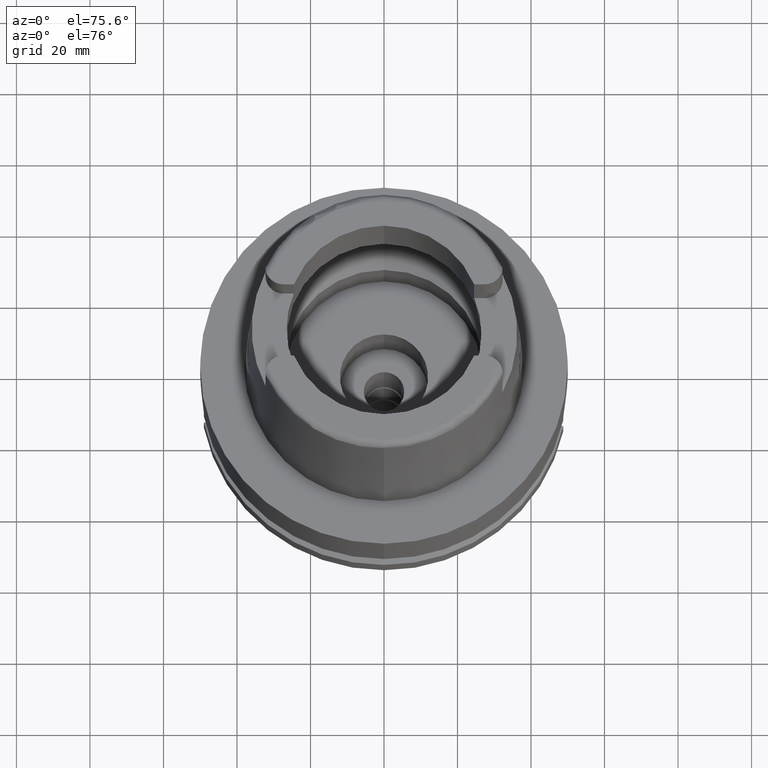
[diagram: clean part render]
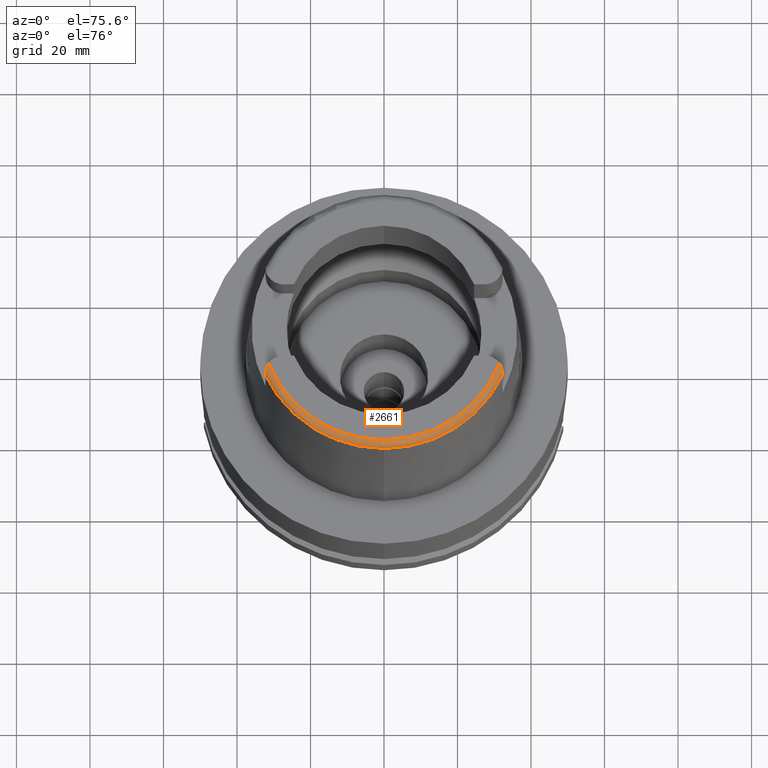
[diagram: same view with one face highlighted and labeled with its STEP entity id]
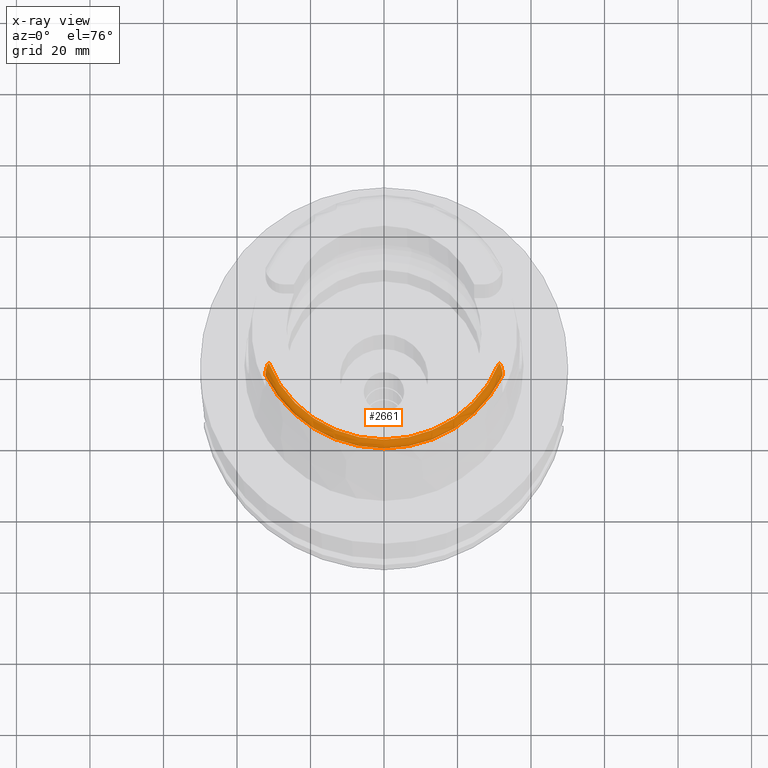
[diagram: x-ray of the same camera — body ghosted, the highlighted face saturated]
A machine part, auxiliary view. The second image highlights one B-rep face of the part: STEP entity #2661.
The next image is the same camera in x-ray: the body ghosted, the highlighted face saturated — about 0% of this face is hidden behind the body in this view.
In plain terms, the highlighted toroidal blend (fillet) surface has major radius 33.5974 mm and minor (blend) radius 2 mm.
Its self-contained STEP definition (entity closure, byte-faithful):
#199=CARTESIAN_POINT('',(0.E0,0.E0,5.E1));
#200=DIRECTION('',(0.E0,0.E0,-1.E0));
#201=DIRECTION('',(9.332215253018E-1,-3.593015233942E-1,0.E0));
#202=AXIS2_PLACEMENT_3D('',#199,#200,#201);
#207=CARTESIAN_POINT('',(-3.135385269249E1,-1.207161079257E1,5.E1));
#208=CARTESIAN_POINT('',(-3.142216743160E1,-1.216817511968E1,5.E1));
#209=CARTESIAN_POINT('',(-3.156009882691E1,-1.237746428653E1,4.998591539067E1));
#210=CARTESIAN_POINT('',(-3.176706257255E1,-1.275776045730E1,4.990700922983E1));
#211=CARTESIAN_POINT('',(-3.194244240746E1,-1.316614288915E1,4.977006830840E1));
#212=CARTESIAN_POINT('',(-3.207488223482E1,-1.357298915160E1,4.958761428567E1));
#213=CARTESIAN_POINT('',(-3.216204635598E1,-1.394593514846E1,4.937947673708E1));
#214=CARTESIAN_POINT('',(-3.221154789196E1,-1.425708009216E1,4.917094014332E1));
#215=CARTESIAN_POINT('',(-3.223745834402E1,-1.451511386344E1,4.896513867992E1));
#216=CARTESIAN_POINT('',(-3.224853522405E1,-1.472743173432E1,4.875948464504E1));
#217=CARTESIAN_POINT('',(-3.225E1,-1.484123081094E1,4.861803816029E1));
#218=CARTESIAN_POINT('',(-3.225E1,-1.489E1,4.854599893822E1));
#237=CARTESIAN_POINT('',(-3.224999491821E1,-1.506448487682E1,4.809973203731E1));
#238=CARTESIAN_POINT('',(-3.224999491821E1,-1.505853670498E1,4.815007791225E1));
#239=CARTESIAN_POINT('',(-3.225000237150E1,-1.503785330363E1,4.824988304617E1));
#240=CARTESIAN_POINT('',(-3.224999932243E1,-1.497920127585E1,4.840028053731E1));
#241=CARTESIAN_POINT('',(-3.225E1,-1.492268851750E1,4.849771321896E1));
#242=CARTESIAN_POINT('',(-3.225E1,-1.489E1,4.854599893822E1));
#247=CARTESIAN_POINT('',(3.225E1,-1.489E1,4.854599893822E1));
#248=CARTESIAN_POINT('',(3.225E1,-1.492405697843E1,4.849569180210E1));
#249=CARTESIAN_POINT('',(3.225000073602E1,-1.498182691184E1,4.839518424210E1));
#250=CARTESIAN_POINT('',(3.224999742392E1,-1.503952278092E1,4.824392962110E1));
#251=CARTESIAN_POINT('',(3.225000552017E1,-1.505881732852E1,4.814727946814E1));
#252=CARTESIAN_POINT('',(3.225000552017E1,-1.506439824101E1,4.810004211016E1));
#257=CARTESIAN_POINT('',(0.E0,0.E0,4.809987853799E1));
#258=DIRECTION('',(0.E0,0.E0,-1.E0));
#259=DIRECTION('',(9.060280460805E-1,-4.232176505246E-1,0.E0));
#260=AXIS2_PLACEMENT_3D('',#257,#258,#259);
#265=CARTESIAN_POINT('',(0.E0,0.E0,4.809987853799E1));
#266=DIRECTION('',(0.E0,0.E0,-1.E0));
#267=DIRECTION('',(0.E0,-1.E0,0.E0));
#268=AXIS2_PLACEMENT_3D('',#265,#266,#267);
#509=CARTESIAN_POINT('',(3.225E1,-1.489E1,4.854599893822E1));
#510=CARTESIAN_POINT('',(3.225E1,-1.484123489956E1,4.861803212081E1));
#511=CARTESIAN_POINT('',(3.224853093263E1,-1.472746046995E1,4.875942106844E1));
#512=CARTESIAN_POINT('',(3.223749877848E1,-1.451573865451E1,4.896457250610E1));
#513=CARTESIAN_POINT('',(3.221163576454E1,-1.425767447703E1,4.917053587406E1));
#514=CARTESIAN_POINT('',(3.216199955721E1,-1.394553524085E1,4.937976579394E1));
#515=CARTESIAN_POINT('',(3.207450633127E1,-1.357161183897E1,4.958831449218E1));
#516=CARTESIAN_POINT('',(3.194197321346E1,-1.316488305140E1,4.977056769753E1));
#517=CARTESIAN_POINT('',(3.176616258811E1,-1.275583301546E1,4.990757830074E1));
#518=CARTESIAN_POINT('',(3.155875308376E1,-1.237526230868E1,4.998619925175E1));
#519=CARTESIAN_POINT('',(3.142154909410E1,-1.216730108655E1,5.E1));
#520=CARTESIAN_POINT('',(3.135385269249E1,-1.207161079257E1,5.E1));
#2195=CARTESIAN_POINT('',(-3.135385269249E1,-1.207161079257E1,5.E1));
#2197=VERTEX_POINT('',#2195);
#2207=CARTESIAN_POINT('',(3.135385269249E1,-1.207161079257E1,5.E1));
#2208=VERTEX_POINT('',#2207);
#2231=VERTEX_POINT('',#218);
#2238=VERTEX_POINT('',#237);
#2239=VERTEX_POINT('',#509);
#2240=VERTEX_POINT('',#252);
#2241=CARTESIAN_POINT('',(1.065814103640E-14,-3.559494289391E1,
4.809987853799E1));
#2242=VERTEX_POINT('',#2241);
#2642=CARTESIAN_POINT('',(0.E0,0.E0,4.8E1));
#2643=DIRECTION('',(0.E0,0.E0,1.E0));
#2644=DIRECTION('',(-4.184165975220E-4,-9.999999124638E-1,0.E0));
#2645=AXIS2_PLACEMENT_3D('',#2642,#2643,#2644);
#2646=TOROIDAL_SURFACE('',#2645,3.359743838136E1,2.E0);
#2648=ORIENTED_EDGE('',*,*,#2647,.T.);
#2649=ORIENTED_EDGE('',*,*,#2633,.F.);
#2650=ORIENTED_EDGE('',*,*,#2622,.F.);
#2652=ORIENTED_EDGE('',*,*,#2651,.F.);
#2654=ORIENTED_EDGE('',*,*,#2653,.T.);
#2656=ORIENTED_EDGE('',*,*,#2655,.T.);
#2658=ORIENTED_EDGE('',*,*,#2657,.T.);
#2659=EDGE_LOOP('',(#2648,#2649,#2650,#2652,#2654,#2656,#2658));
#2660=FACE_OUTER_BOUND('',#2659,.F.);
#203=CIRCLE('',#202,3.359743838136E1);
#219=B_SPLINE_CURVE_WITH_KNOTS('',3,(#207,#208,#209,#210,#211,#212,#213,#214,
#215,#216,#217,#218),.UNSPECIFIED.,.F.,.F.,(4,1,1,1,1,1,1,1,1,4),(0.E0,
1.111111111111E-1,2.222222222222E-1,3.333333333333E-1,4.444444444444E-1,
5.555555555556E-1,6.666666666667E-1,7.777777777778E-1,8.888888888889E-1,1.E0),
.UNSPECIFIED.);
#243=B_SPLINE_CURVE_WITH_KNOTS('',3,(#237,#238,#239,#240,#241,#242),
.UNSPECIFIED.,.F.,.F.,(4,1,1,4),(0.E0,3.333333333333E-1,6.666666666667E-1,1.E0),
.UNSPECIFIED.);
#253=B_SPLINE_CURVE_WITH_KNOTS('',3,(#247,#248,#249,#250,#251,#252),
.UNSPECIFIED.,.F.,.F.,(4,1,1,4),(0.E0,3.333333333333E-1,6.666666666667E-1,1.E0),
.UNSPECIFIED.);
#261=CIRCLE('',#260,3.559494289391E1);
#269=CIRCLE('',#268,3.559494289391E1);
#521=B_SPLINE_CURVE_WITH_KNOTS('',3,(#509,#510,#511,#512,#513,#514,#515,#516,
#517,#518,#519,#520),.UNSPECIFIED.,.F.,.F.,(4,1,1,1,1,1,1,1,1,4),(0.E0,
1.111111111111E-1,2.222222222222E-1,3.333333333333E-1,4.444444444444E-1,
5.555555555556E-1,6.666666666667E-1,7.777777777778E-1,8.888888888889E-1,1.E0),
.UNSPECIFIED.);
#2622=EDGE_CURVE('',#2208,#2197,#203,.T.);
#2633=EDGE_CURVE('',#2197,#2231,#219,.T.);
#2647=EDGE_CURVE('',#2238,#2231,#243,.T.);
#2651=EDGE_CURVE('',#2239,#2208,#521,.T.);
#2653=EDGE_CURVE('',#2239,#2240,#253,.T.);
#2655=EDGE_CURVE('',#2240,#2242,#261,.T.);
#2657=EDGE_CURVE('',#2242,#2238,#269,.T.);
#2661=ADVANCED_FACE('',(#2660),#2646,.T.);